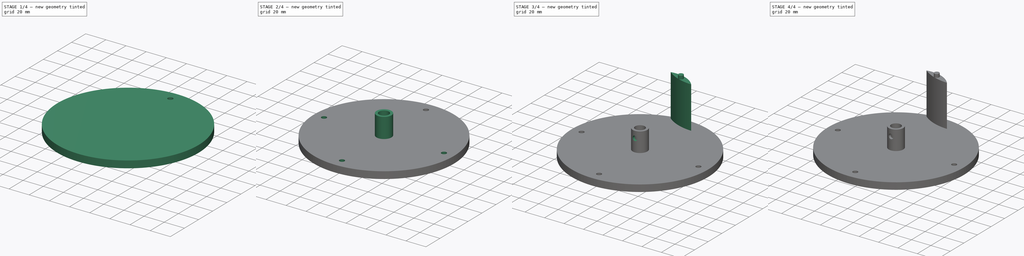
[diagram: build sequence overview — one tinted view per stage of 4, left to right]
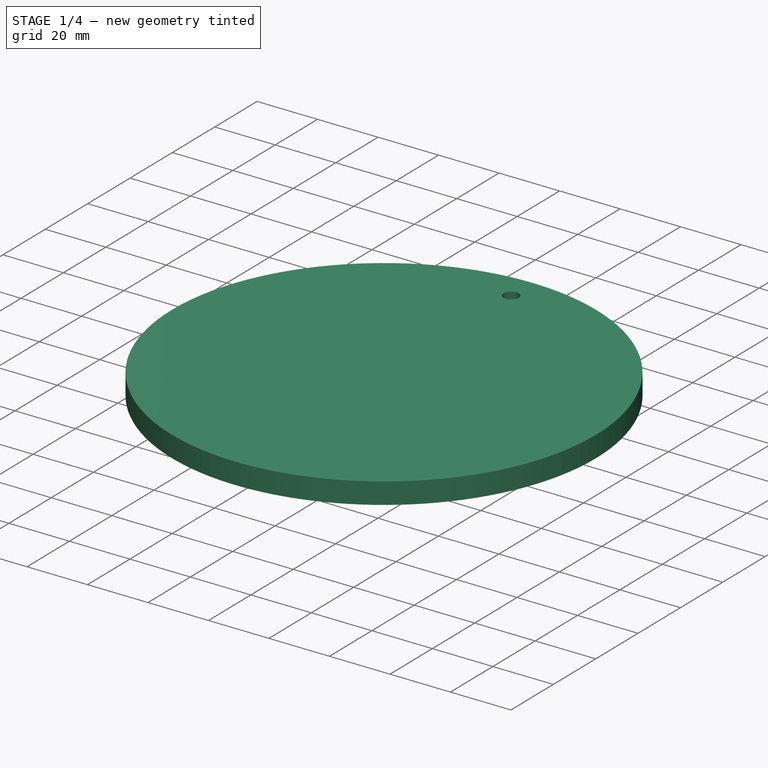
[diagram: stage 1 of 4 — iso view after this stage's code; geometry added in this stage tinted green]
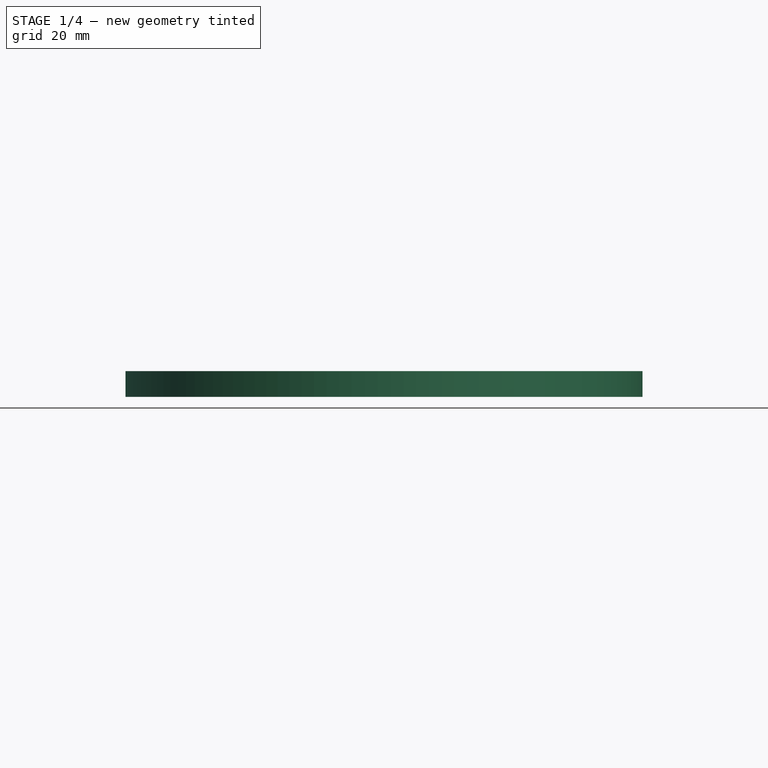
[diagram: stage 1 of 4 — front view after this stage's code; geometry added in this stage tinted green]
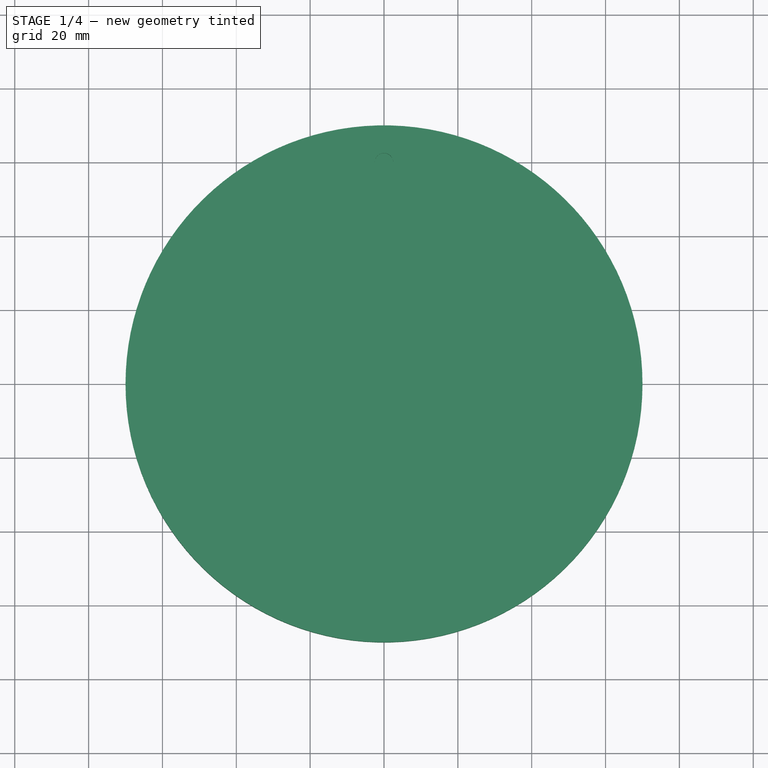
[diagram: stage 1 of 4 — top view after this stage's code; geometry added in this stage tinted green]
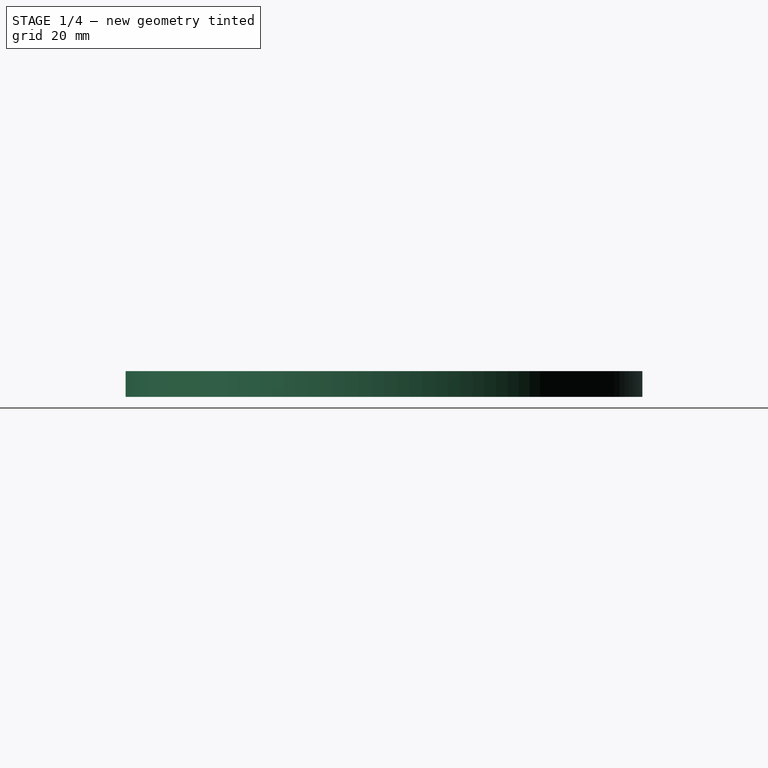
[diagram: stage 1 of 4 — right view after this stage's code; geometry added in this stage tinted green]
FCSTD DOCUMENT  (FreeCAD 0.19R)
Label: pales
License: All rights reserved
LicenseURL: http://en.wikipedia.org/wiki/All_rights_reserved
objects: Sketcher::SketchObject×12, PartDesign::Pad×7, PartDesign::Pocket×4, PartDesign::Body×3, PartDesign::PolarPattern×2, Spreadsheet::Sheet×1, PartDesign::Hole×1
note: 41 computed .brp shape members not serialized (recipe doc carries the construction recipe); baked Part::Feature solids carry a one-line shape summary decoded from their .brp

FEATURE [PartDesign::Body] Body002  label="pale"
  Group = -> [Sketch015,Pad007,Sketch016,Pad008,Sketch017,Pad009]
  Origin = -> Origin002
  Tip = -> Pad009
FEATURE [Sketcher::SketchObject] Sketch018
  FullyConstrained = true
  MapMode = 5
  expr: Constraints[1] = <<dimensions>>.A2
  sketch-geometry (1):
    g0: Circle CenterX=0 CenterY=0 CenterZ=0 NormalX=0 NormalY=0 NormalZ=1 AngleXU=0 Radius=70
  constraints (2):
    c: Coincident(g0,g-1)
    c: Radius(g0) = 70
FEATURE [PartDesign::Pad] Pad010
  Direction = (1,1,1)
  Length = 7
  Length2 = 100
  Profile = -> Sketch018
  Type = 0
  expr: Length = <<dimensions>>.B2
FEATURE [Sketcher::SketchObject] Sketch019
  FullyConstrained = true
  MapMode = 5
  Placement = pos=(0,0,7) rot=(0,0,1;0rad)
  expr: Constraints[3] = 5mm / 2
  expr: Constraints[1] = <<dimensions>>.C2
  sketch-geometry (2):
    g0: GeomPoint X=0 Y=60 Z=0
    g1: Circle CenterX=0 CenterY=60 CenterZ=0 NormalX=0 NormalY=0 NormalZ=1 AngleXU=0 Radius=2.5
  constraints (4):
    c: PointOnObject(g0,g-2)
    c: DistanceY(g-1,g0) = 60
    c: Coincident(g1,g0)
    c: Radius(g1) = 2.5
FEATURE [PartDesign::Pocket] Pocket
  BaseFeature = -> Pad010
  Length = 3.5
  Length2 = 100
  Profile = -> Sketch019
  Type = 0
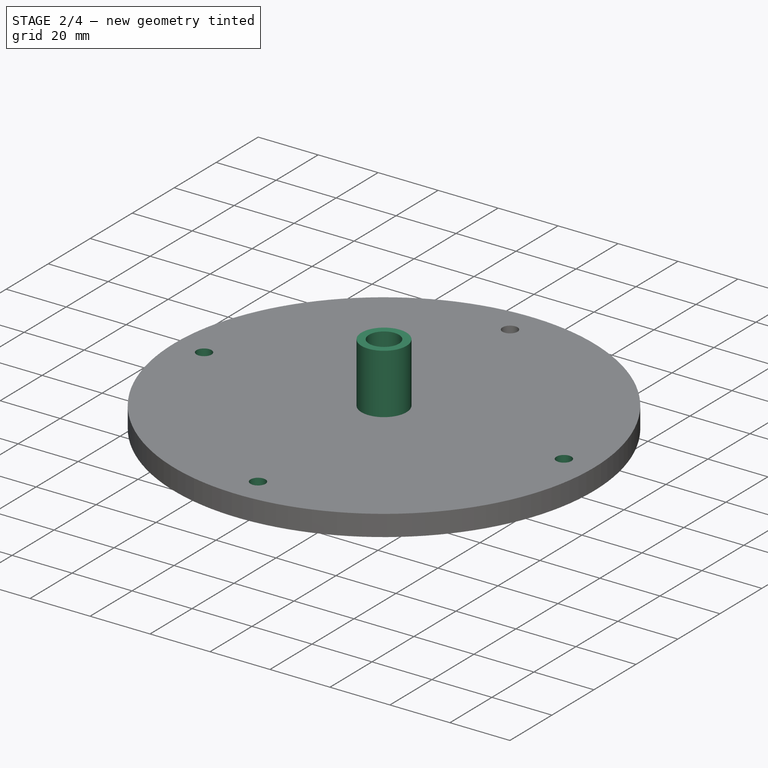
[diagram: stage 2 of 4 — iso view after this stage's code; geometry added in this stage tinted green]
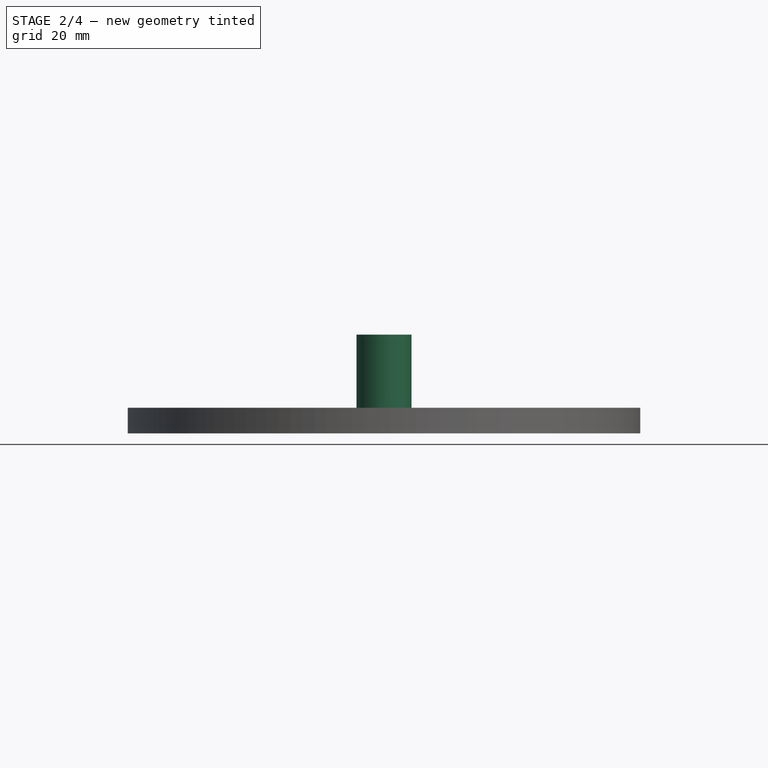
[diagram: stage 2 of 4 — front view after this stage's code; geometry added in this stage tinted green]
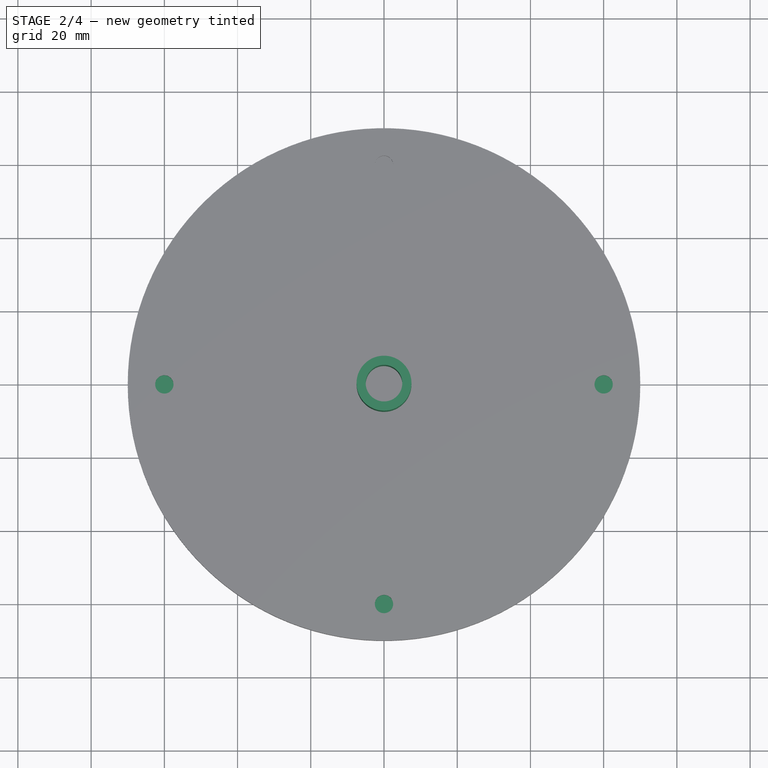
[diagram: stage 2 of 4 — top view after this stage's code; geometry added in this stage tinted green]
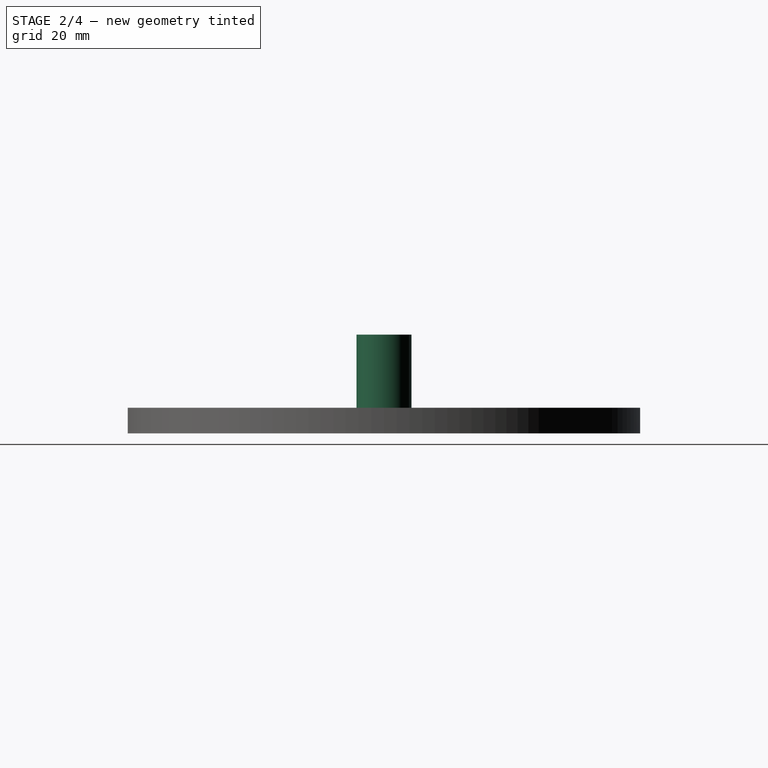
[diagram: stage 2 of 4 — right view after this stage's code; geometry added in this stage tinted green]
FEATURE [PartDesign::PolarPattern] PolarPattern
  Angle = 360
  Axis = -> Sketch019 [N_Axis]
  BaseFeature = -> Pocket
  Occurrences = 4
  Originals = -> [Pocket]
  expr: Occurrences = <<dimensions>>.D2
FEATURE [Sketcher::SketchObject] Sketch
  FullyConstrained = true
  MapMode = 5
  Placement = pos=(0,0,7) rot=(0,0,1;0rad)
  Support = -> [PolarPattern]
  expr: Constraints[3] = <<dimensions>>.L2 + <<dimensions>>.K2
  expr: Constraints[2] = <<dimensions>>.K2
  sketch-geometry (2):
    g0: Circle CenterX=0 CenterY=0 CenterZ=0 NormalX=0 NormalY=0 NormalZ=1 AngleXU=0 Radius=5
    g1: Circle CenterX=0 CenterY=0 CenterZ=0 NormalX=0 NormalY=0 NormalZ=1 AngleXU=0 Radius=7.5
  constraints (4):
    c: Coincident(g0,g-1)
    c: Coincident(g1,g0)
    c: Radius(g0) = 5
    c: Radius(g1) = 7.5
FEATURE [PartDesign::Pad] Pad
  BaseFeature = -> PolarPattern
  Direction = (1,1,1)
  Length = 20
  Length2 = 100
  Profile = -> Sketch
  Type = 0
  expr: Length = <<dimensions>>.M2
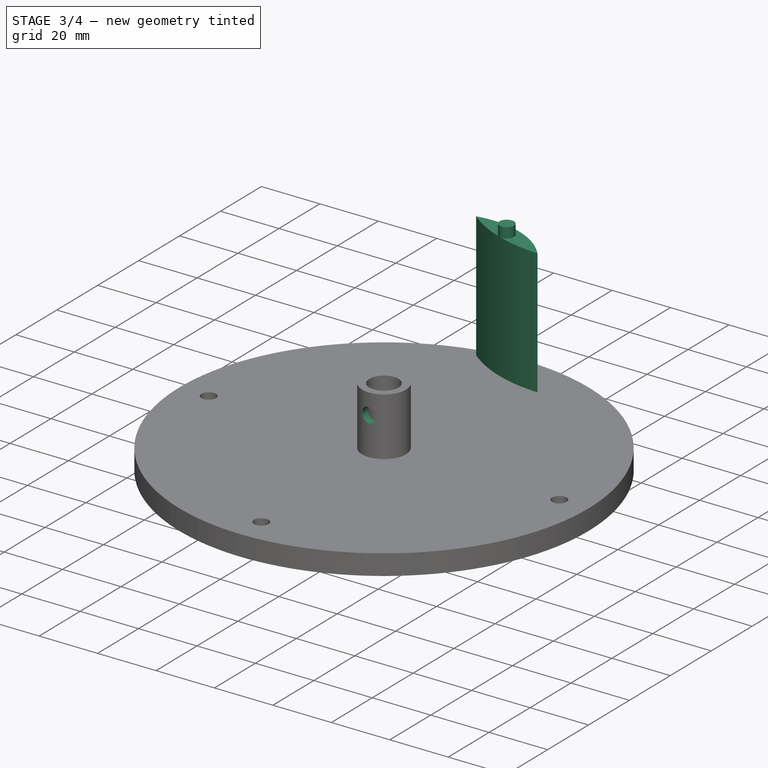
[diagram: stage 3 of 4 — iso view after this stage's code; geometry added in this stage tinted green]
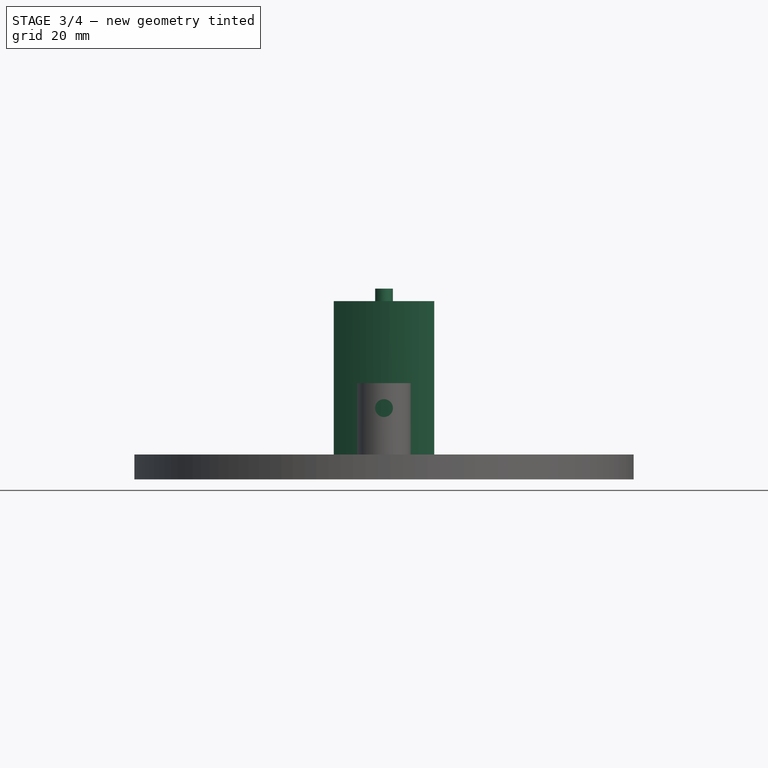
[diagram: stage 3 of 4 — front view after this stage's code; geometry added in this stage tinted green]
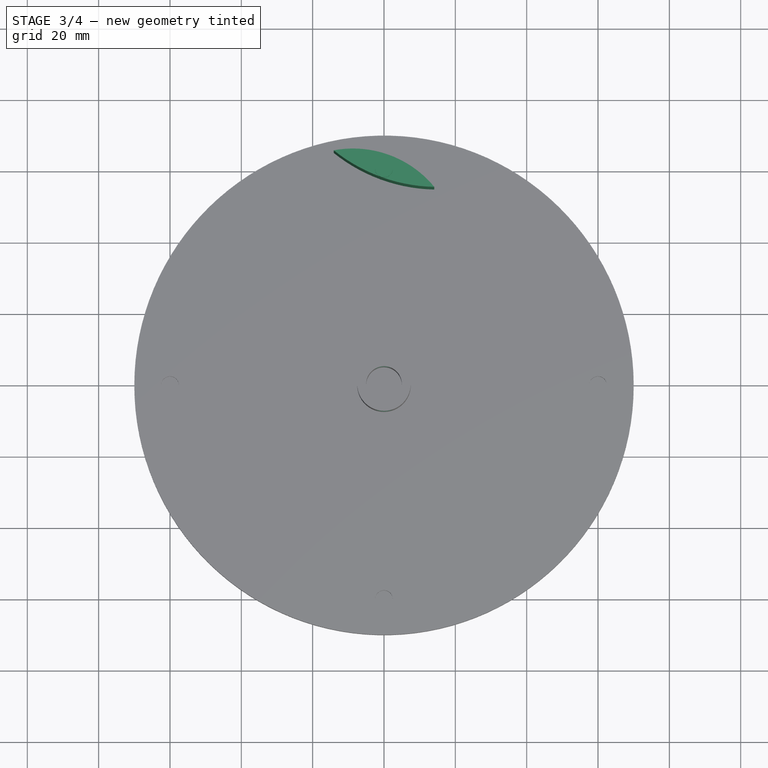
[diagram: stage 3 of 4 — top view after this stage's code; geometry added in this stage tinted green]
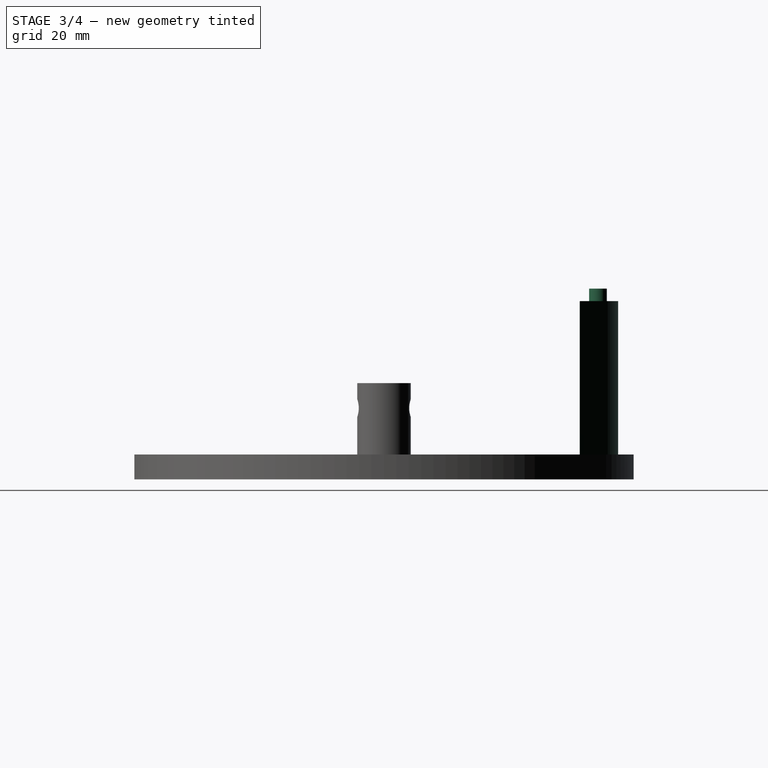
[diagram: stage 3 of 4 — right view after this stage's code; geometry added in this stage tinted green]
FEATURE [Spreadsheet::Sheet] Spreadsheet  label="dimensions"
  cells = A1=r; B1=h; C1=d; D1=n; E1=L; F1=l; G1=angle; H1=H; J1=d axe; K1=r axe; L1=e fixation axe; M1=h fixation axe; N1=d vis fixation; A2==70mm; B2==7mm; C2==60mm; D2=4; E2==30mm; F2==5mm; G2=20; H2==50mm; J2==10mm; K2==J2 / 2; L2==2.5mm; M2==20mm; N2==5mm
FEATURE [Sketcher::SketchObject] Sketch009
  FullyConstrained = true
  MapMode = 5
  Support = -> [XY_Plane001]
  expr: Constraints[1] = <<dimensions>>.A2
  sketch-geometry (1):
    g0: Circle CenterX=0 CenterY=0 CenterZ=0 NormalX=0 NormalY=0 NormalZ=1 AngleXU=0 Radius=70
  constraints (2):
    c: Coincident(g0,g-1)
    c: Radius(g0) = 70
FEATURE [PartDesign::Pad] Pad005
  Direction = (1,1,1)
  Length = 7
  Length2 = 100
  Profile = -> Sketch009
  Type = 0
  expr: Length = <<dimensions>>.B2
FEATURE [Sketcher::SketchObject] Sketch010
  FullyConstrained = true
  MapMode = 5
  Placement = pos=(0,0,7) rot=(0,0,1;0rad)
  expr: Constraints[1] = <<dimensions>>.C2
  expr: Constraints[3] = 5mm / 2
  sketch-geometry (2):
    g0: GeomPoint X=0 Y=60 Z=0
    g1: Circle CenterX=0 CenterY=60 CenterZ=0 NormalX=0 NormalY=0 NormalZ=1 AngleXU=0 Radius=2.5
  constraints (4):
    c: PointOnObject(g0,g-2)
    c: DistanceY(g-1,g0) = 60
    c: Coincident(g1,g0)
    c: Radius(g1) = 2.5
FEATURE [PartDesign::Hole] Hole001
  BaseFeature = -> Pad005
  Depth = 3.5
  DepthType = 0
  Diameter = 6
  DrillForDepth = false
  DrillPoint = 1
  DrillPointAngle = 118
  HoleCutCountersinkAngle = 90
  HoleCutCustomValues = false
  HoleCutDepth = 0
  HoleCutDiameter = 6.1
  HoleCutType = 0
  ModelActualThread = false
  Profile = -> Sketch010
  Tapered = false
  TaperedAngle = 90
  ThreadAngle = 0
  ThreadClass = 0
  ThreadCutOffInner = 0
  ThreadCutOffOuter = 0
  ThreadDirection = 0
  ThreadFit = 0
  ThreadPitch = 0
  ThreadSize = 0
  ThreadType = 0
  Threaded = false
  expr: Depth = <<dimensions>>.B2 / 2
  expr: Diameter = 6mm
FEATURE [PartDesign::PolarPattern] PolarPattern002
  Angle = 360
  Axis = -> Sketch010 [N_Axis]
  BaseFeature = -> Hole001
  Occurrences = 4
  Originals = -> [Hole001]
  expr: Occurrences = <<dimensions>>.D2
FEATURE [Sketcher::SketchObject] Sketch012
  FullyConstrained = true
  MapMode = 5
  Placement = pos=(0,0,0) rot=(1,0,0;1.5708rad)
  Support = -> [XZ_Plane001]
  expr: Constraints[2] = <<dimensions>>.N2 / 2
  expr: Constraints[1] = <<dimensions>>.M2
  sketch-geometry (1):
    g0: Circle CenterX=0 CenterY=20 CenterZ=0 NormalX=0 NormalY=0 NormalZ=1 AngleXU=0 Radius=2.5
  constraints (3):
    c: PointOnObject(g0,g-2)
    c: DistanceY(g-1,g0) = 20
    c: Radius(g0) = 2.5
FEATURE [Sketcher::SketchObject] Sketch015
  FullyConstrained = true
  MapMode = 5
  Support = -> [XY_Plane002]
  expr: Constraints[11] = <<dimensions>>.F2
  expr: Constraints[10] = <<dimensions>>.F2 / 8 * 5
  expr: Constraints[7] = <<dimensions>>.E2 / 2
  expr: Constraints[6] = <<dimensions>>.E2 / 4
  expr: Constraints[4] = 90 + <<dimensions>>.G2
  expr: Constraints[3] = <<dimensions>>.E2
  expr: Constraints[1] = <<dimensions>>.C2
  sketch-geometry (6):
    g0: GeomPoint X=0 Y=60 Z=0
    g1: LineSegment StartX=-14.0954 StartY=65.1303 StartZ=0 EndX=14.0954 EndY=54.8697 EndZ=0
    g2: GeomPoint X=-7.04769 Y=62.5652 Z=0
    g3: LineSegment StartX=-5.97888 StartY=65.5017 StartZ=0 EndX=-7.68898 EndY=60.8032 EndZ=0
    g4: ArcOfCircle CenterX=-8.70014 CenterY=36.0966 CenterZ=0 NormalX=0 NormalY=0 NormalZ=1 AngleXU=0 Radius=29.5308 StartAngle=0.688933 EndAngle=1.75453
    g5: ArcOfCircle CenterX=15.0703 CenterY=101.405 CenterZ=0 NormalX=0 NormalY=0 NormalZ=1 AngleXU=0 Radius=46.5457 StartAngle=4.0352 EndAngle=4.69144
  constraints (18):
    c: PointOnObject(g0,g-2)
    c: DistanceY(g-1,g0) = 60
    c: PointOnObject(g0,g1)
    c: Distance(g1) = 30
    c: Angle(g1,g-2) = 1.91986
    c: PointOnObject(g2,g1)
    c: Distance(g0,g2) = 7.5
    c: Distance(g0,g1) = 15
    c: PointOnObject(g2,g3)
    c: Perpendicular(g1,g3)
    c: Distance(g2,g3) = 3.125
    c: Distance(g3) = 5
    c: Coincident(g4,g1)
    c: Coincident(g4,g1)
    c: PointOnObject(g3,g4)
    c: Coincident(g5,g4)
    c: Coincident(g5,g4)
    c: PointOnObject(g3,g5)
FEATURE [PartDesign::Pad] Pad007
  Direction = (1,1,1)
  Length = 50
  Length2 = 100
  Profile = -> Sketch015
  Type = 0
  expr: Length = <<dimensions>>.H2
FEATURE [Sketcher::SketchObject] Sketch016
  FullyConstrained = true
  MapMode = 5
  Placement = pos=(0,0,50) rot=(0,0,1;0rad)
  Support = -> [Pad007]
  expr: Constraints[1] = <<dimensions>>.C2
  sketch-geometry (2):
    g0: GeomPoint X=0 Y=60 Z=0
    g1: Circle CenterX=0 CenterY=60 CenterZ=0 NormalX=0 NormalY=0 NormalZ=1 AngleXU=0 Radius=2.5
  constraints (4):
    c: PointOnObject(g0,g-2)
    c: Distance(g0,g-1) = 60
    c: Coincident(g1,g0)
    c: Radius(g1) = 2.5
FEATURE [PartDesign::Pad] Pad008
  BaseFeature = -> Pad007
  Direction = (1,1,1)
  Length = 3.5
  Length2 = 100
  Profile = -> Sketch016
  Type = 0
  expr: Length = 3.5
FEATURE [Sketcher::SketchObject] Sketch020
  FullyConstrained = true
  MapMode = 5
  Placement = pos=(0,0,0) rot=(1,0,0;1.5708rad)
  Support = -> [XZ_Plane]
  expr: Constraints[1] = <<dimensions>>.M2
  expr: Constraints[2] = <<dimensions>>.N2 / 2
  sketch-geometry (1):
    g0: Circle CenterX=0 CenterY=20 CenterZ=0 NormalX=0 NormalY=0 NormalZ=1 AngleXU=0 Radius=2.5
  constraints (3):
    c: PointOnObject(g0,g-2)
    c: DistanceY(g-1,g0) = 20
    c: Radius(g0) = 2.5
FEATURE [PartDesign::Pocket] Pocket005
  BaseFeature = -> Pad
  Length = 9
  Length2 = 99
  Midplane = true
  Profile = -> Sketch020
  Type = 1
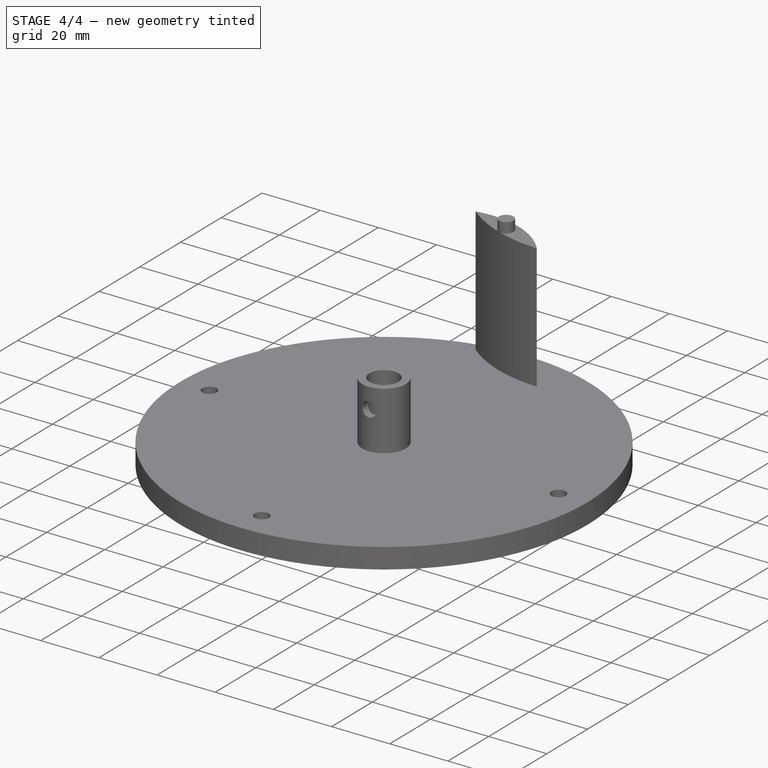
[diagram: stage 4 of 4 — iso view after this stage's code; geometry added in this stage tinted green]
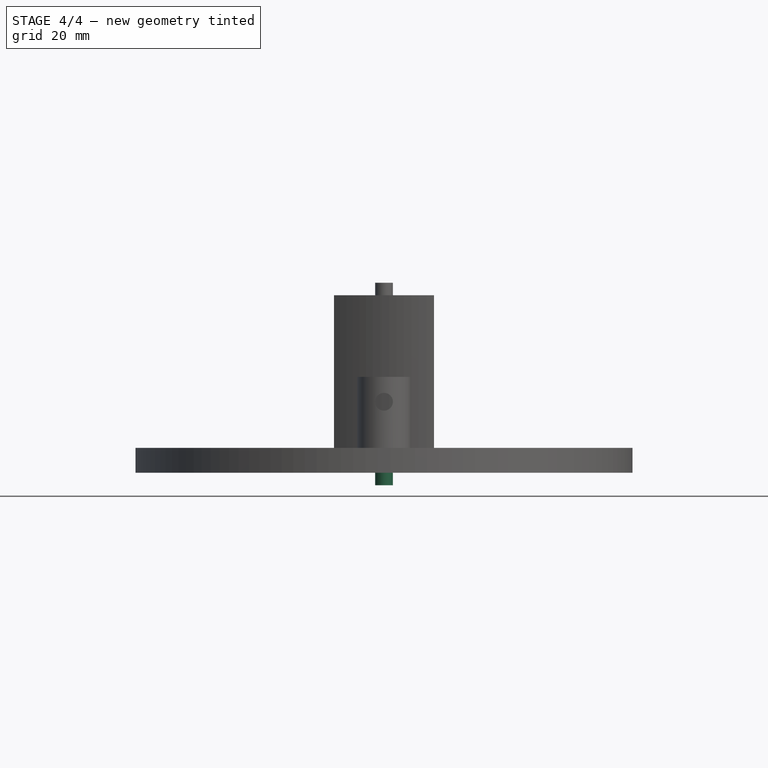
[diagram: stage 4 of 4 — front view after this stage's code; geometry added in this stage tinted green]
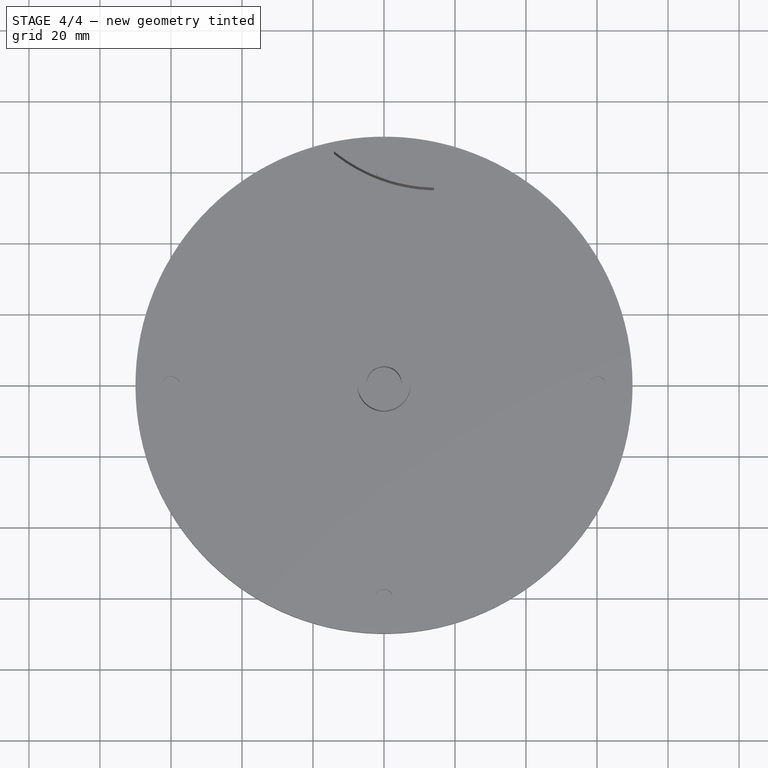
[diagram: stage 4 of 4 — top view after this stage's code; geometry added in this stage tinted green]
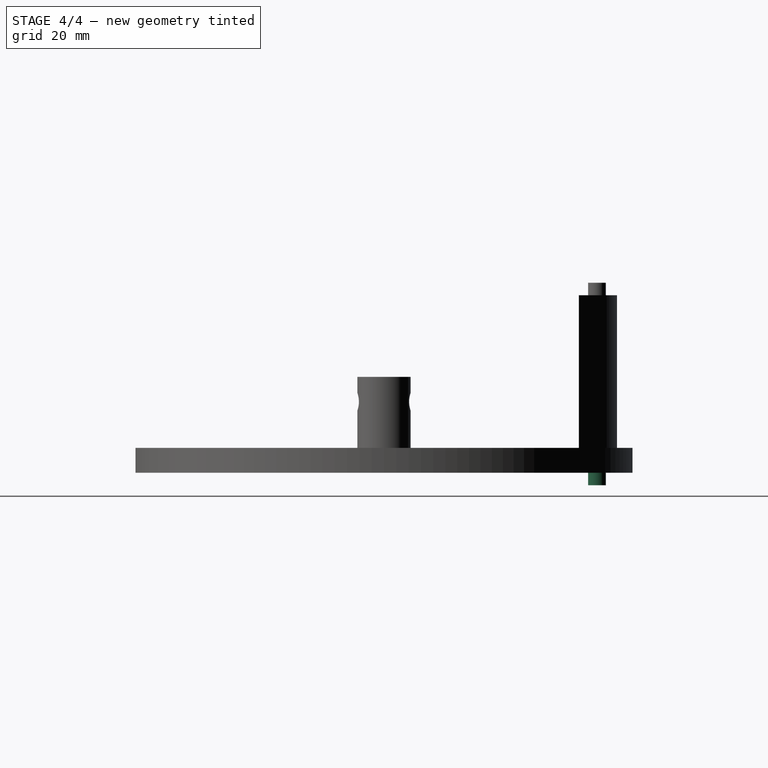
[diagram: stage 4 of 4 — right view after this stage's code; geometry added in this stage tinted green]
FEATURE [Sketcher::SketchObject] Sketch017
  FullyConstrained = true
  MapMode = 5
  Placement = pos=(0,0,0) rot=(1,0,0;3.14159rad)
  Support = -> [Pad008]
  expr: Constraints[1] = <<dimensions>>.C2
  sketch-geometry (2):
    g0: GeomPoint X=0 Y=-60 Z=0
    g1: Circle CenterX=0 CenterY=-60 CenterZ=0 NormalX=0 NormalY=0 NormalZ=1 AngleXU=0 Radius=2.5
  constraints (4):
    c: PointOnObject(g0,g-2)
    c: Distance(g-1,g0) = 60
    c: Coincident(g1,g0)
    c: Radius(g1) = 2.5
FEATURE [PartDesign::Pad] Pad009
  BaseFeature = -> Pad008
  Direction = (1,1,1)
  Length = 3.5
  Length2 = 100
  Profile = -> Sketch017
  Type = 0
FEATURE [PartDesign::Body] Body  label="top"
  Group = -> [Pad010,Sketch018,Sketch019,Pocket,PolarPattern,Sketch,Pad,Sketch020,Pocket005]
  Origin = -> Origin
  Tip = -> Pocket005
FEATURE [PartDesign::Body] Body001  label="bottom"
  Group = -> [Sketch009,Pad005,Sketch010,Hole001,PolarPattern002,Sketch011,Pad006,Sketch012,Pocket003,Sketch013,Pocket004]
  Origin = -> Origin001
  Tip = -> Pocket004
FEATURE [Sketcher::SketchObject] Sketch011
  FullyConstrained = true
  MapMode = 5
  Placement = pos=(0,0,7) rot=(0,0,1;0rad)
  Support = -> [Pocket003]
  expr: Constraints[3] = <<dimensions>>.L2 + <<dimensions>>.K2
  expr: Constraints[1] = <<dimensions>>.K2
  sketch-geometry (2):
    g0: Circle CenterX=0 CenterY=0 CenterZ=0 NormalX=0 NormalY=0 NormalZ=1 AngleXU=0 Radius=5
    g1: Circle CenterX=0 CenterY=0 CenterZ=0 NormalX=0 NormalY=0 NormalZ=1 AngleXU=0 Radius=7.5
  constraints (4):
    c: Coincident(g0,g-1)
    c: Radius(g0) = 5
    c: Coincident(g1,g0)
    c: Radius(g1) = 7.5
FEATURE [PartDesign::Pad] Pad006
  BaseFeature = -> PolarPattern002
  Direction = (1,1,1)
  Length = 20
  Length2 = 100
  Profile = -> Sketch011
  Type = 0
  expr: Length = <<dimensions>>.M2
FEATURE [PartDesign::Pocket] Pocket003
  BaseFeature = -> Pad006
  Length = 17
  Length2 = 100
  Profile = -> Sketch012
  Type = 4
FEATURE [Sketcher::SketchObject] Sketch013
  FullyConstrained = true
  MapMode = 5
  Placement = pos=(0,0,7) rot=(0,0,1;0rad)
  Support = -> [Pocket003]
  expr: Constraints[1] = <<dimensions>>.K2
  sketch-geometry (1):
    g0: Circle CenterX=0 CenterY=0 CenterZ=0 NormalX=0 NormalY=0 NormalZ=1 AngleXU=0 Radius=5
  constraints (2):
    c: Coincident(g0,g-1)
    c: Radius(g0) = 5
FEATURE [PartDesign::Pocket] Pocket004
  BaseFeature = -> Pocket003
  Length = 7
  Length2 = 100
  Profile = -> Sketch013
  Type = 0
  expr: Length = <<dimensions>>.B2
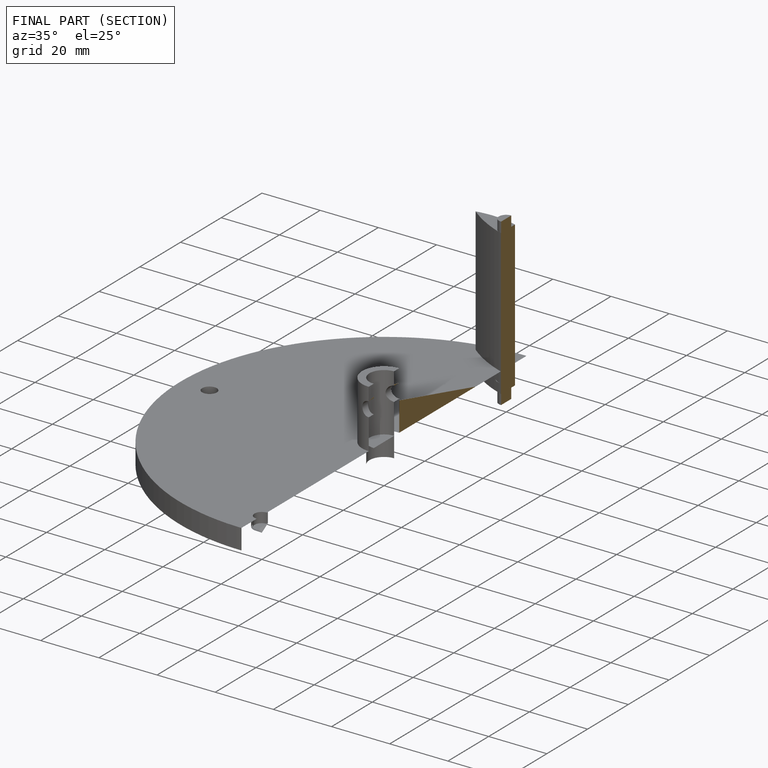
[diagram: finished part — half-section view (interior)]
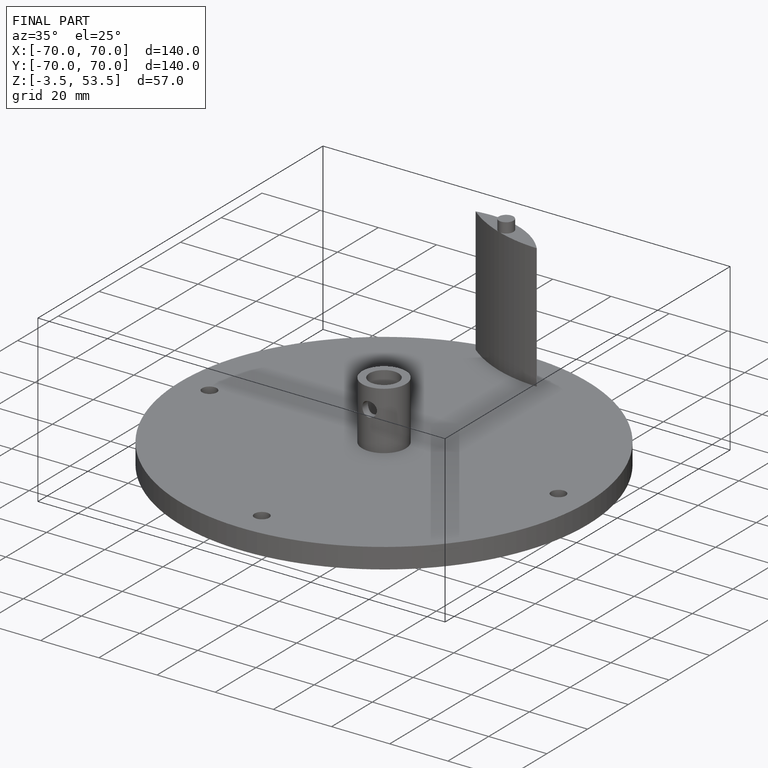
[diagram: finished part — iso view with bounding-box wireframe]
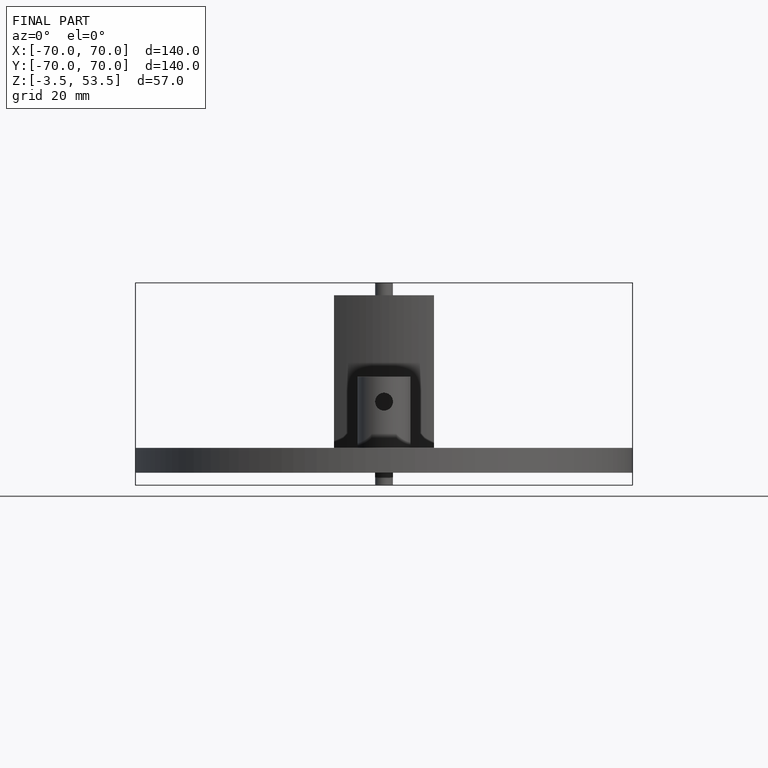
[diagram: finished part — front view with bounding-box wireframe]
